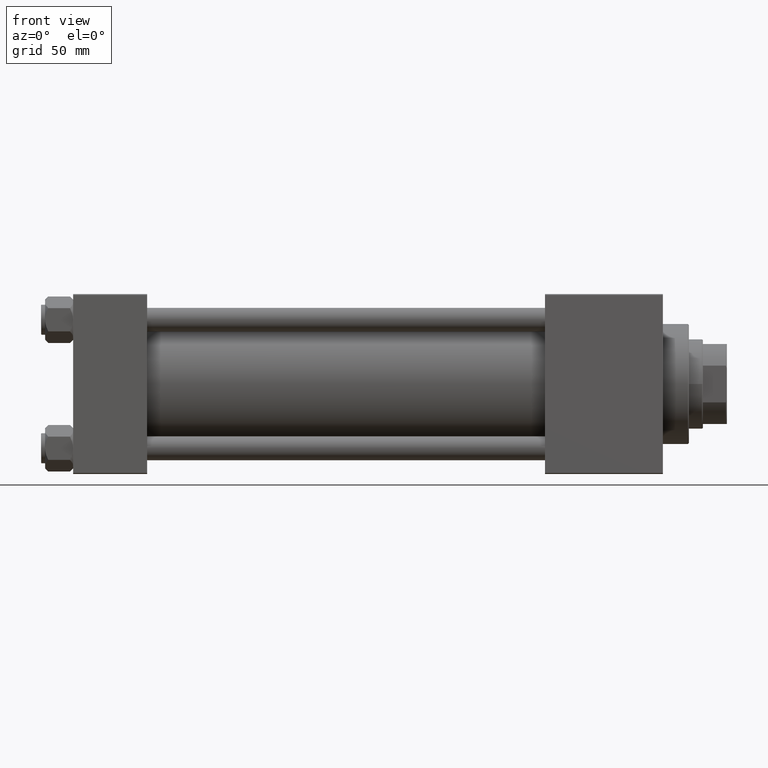
[diagram: clean part render]
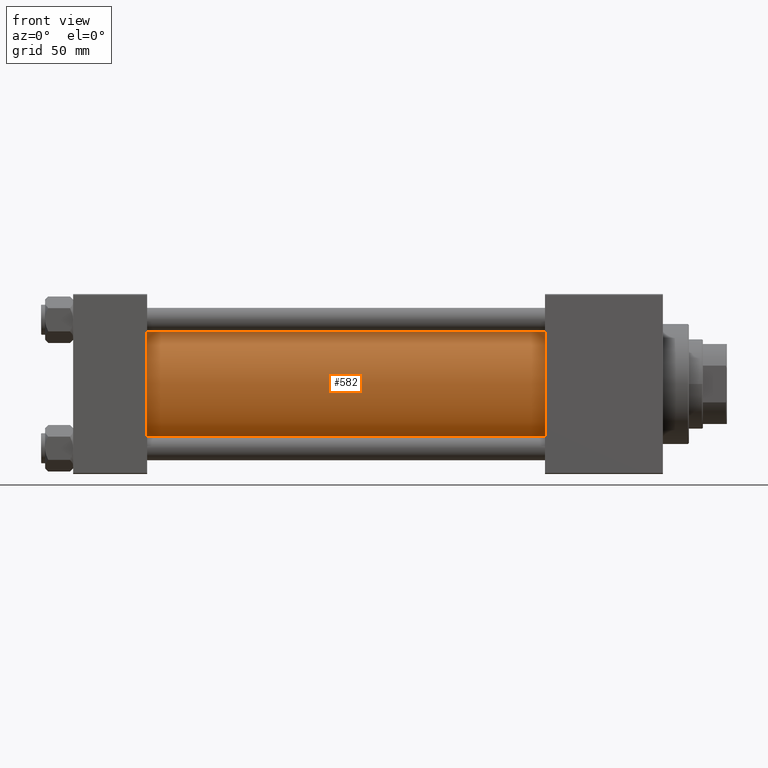
[diagram: same view with one face highlighted and labeled with its STEP entity id]
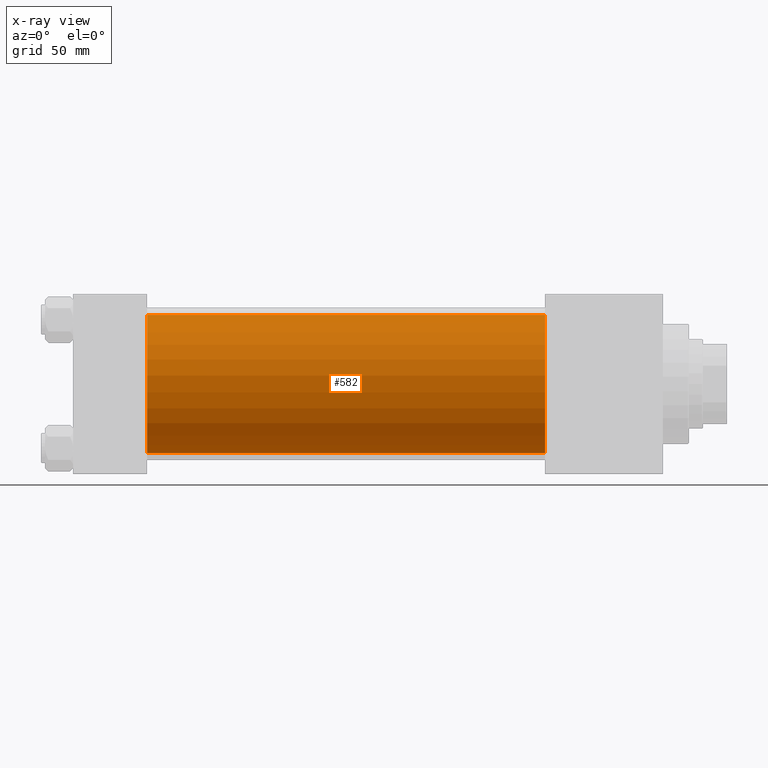
[diagram: x-ray of the same camera — body ghosted, the highlighted face saturated]
A machine part, front view. The second image highlights one B-rep face of the part: STEP entity #582.
The next image is the same camera in x-ray: the body ghosted, the highlighted face saturated — about 0% of this face is hidden behind the body in this view.
In plain terms, the highlighted cylindrical surface (partial cylindrical patch) has radius 34.5 mm, axis along (-1, -0, -0).
Its self-contained STEP definition (entity closure, byte-faithful):
#582 = ADVANCED_FACE ( 'NONE', ( #45620 ), #42331, .T. ) ;
#784 = CARTESIAN_POINT ( 'NONE',  ( 236.0000000000000284, -2.602085213965210642E-15, 0.000000000000000000 ) ) ;
#1521 = ORIENTED_EDGE ( 'NONE', *, *, #1685, .F. ) ;
#1685 = EDGE_CURVE ( 'NONE', #8427, #13558, #4314, .T. ) ;
#2000 = CARTESIAN_POINT ( 'NONE',  ( 236.0000000000000284, -2.602085213965210642E-15, 34.50000000000000000 ) ) ;
#2459 = VERTEX_POINT ( 'NONE', #2000 ) ;
#4314 = LINE ( 'NONE', #12432, #24299 ) ;
#5078 = CARTESIAN_POINT ( 'NONE',  ( 37.00000000000000711, -2.602085213965210642E-15, 34.50000000000000000 ) ) ;
#7851 = DIRECTION ( 'NONE',  ( 0.000000000000000000, 0.000000000000000000, 1.000000000000000000 ) ) ;
#7873 = DIRECTION ( 'NONE',  ( -1.000000000000000000, -0.000000000000000000, -0.000000000000000000 ) ) ;
#8419 = CARTESIAN_POINT ( 'NONE',  ( 236.0000000000000284, 1.622946243093158675E-15, -34.50000000000000000 ) ) ;
#8427 = VERTEX_POINT ( 'NONE', #8419 ) ;
#10495 = AXIS2_PLACEMENT_3D ( 'NONE', #10910, #30916, #7851 ) ;
#10910 = CARTESIAN_POINT ( 'NONE',  ( 236.0000000000000284, -2.602085213965210642E-15, 0.000000000000000000 ) ) ;
#12432 = CARTESIAN_POINT ( 'NONE',  ( 236.0000000000000284, 1.622946243093158675E-15, -34.50000000000000000 ) ) ;
#12437 = CARTESIAN_POINT ( 'NONE',  ( 37.00000000000000711, -2.602085213965210642E-15, 0.000000000000000000 ) ) ;
#13558 = VERTEX_POINT ( 'NONE', #24291 ) ;
#14129 = LINE ( 'NONE', #33614, #41575 ) ;
#14419 = EDGE_CURVE ( 'NONE', #2459, #20638, #14129, .T. ) ;
#17011 = DIRECTION ( 'NONE',  ( 0.000000000000000000, 0.000000000000000000, -1.000000000000000000 ) ) ;
#20638 = VERTEX_POINT ( 'NONE', #5078 ) ;
#21245 = AXIS2_PLACEMENT_3D ( 'NONE', #784, #48151, #17011 ) ;
#21341 = ORIENTED_EDGE ( 'NONE', *, *, #48933, .T. ) ;
#24291 = CARTESIAN_POINT ( 'NONE',  ( 37.00000000000000711, 1.622946243093158675E-15, -34.50000000000000000 ) ) ;
#24299 = VECTOR ( 'NONE', #7873, 1000.000000000000000 ) ;
#25616 = AXIS2_PLACEMENT_3D ( 'NONE', #12437, #39544, #43840 ) ;
#26287 = DIRECTION ( 'NONE',  ( -1.000000000000000000, -0.000000000000000000, -0.000000000000000000 ) ) ;
#30916 = DIRECTION ( 'NONE',  ( -1.000000000000000000, -0.000000000000000000, -0.000000000000000000 ) ) ;
#32547 = CIRCLE ( 'NONE', #21245, 34.50000000000000000 ) ;
#33614 = CARTESIAN_POINT ( 'NONE',  ( 236.0000000000000284, -2.602085213965210642E-15, 34.50000000000000000 ) ) ;
#38786 = ORIENTED_EDGE ( 'NONE', *, *, #43462, .F. ) ;
#39544 = DIRECTION ( 'NONE',  ( 1.000000000000000000, -0.000000000000000000, 0.000000000000000000 ) ) ;
#40160 = CIRCLE ( 'NONE', #25616, 34.50000000000000000 ) ;
#41575 = VECTOR ( 'NONE', #26287, 1000.000000000000000 ) ;
#42252 = EDGE_LOOP ( 'NONE', ( #1521, #38786, #48556, #21341 ) ) ;
#42331 = CYLINDRICAL_SURFACE ( 'NONE', #10495, 34.50000000000000000 ) ;
#43462 = EDGE_CURVE ( 'NONE', #2459, #8427, #32547, .T. ) ;
#43840 = DIRECTION ( 'NONE',  ( 0.000000000000000000, 0.000000000000000000, 1.000000000000000000 ) ) ;
#45620 = FACE_OUTER_BOUND ( 'NONE', #42252, .T. ) ;
#48151 = DIRECTION ( 'NONE',  ( 1.000000000000000000, 0.000000000000000000, 0.000000000000000000 ) ) ;
#48556 = ORIENTED_EDGE ( 'NONE', *, *, #14419, .T. ) ;
#48933 = EDGE_CURVE ( 'NONE', #20638, #13558, #40160, .T. ) ;